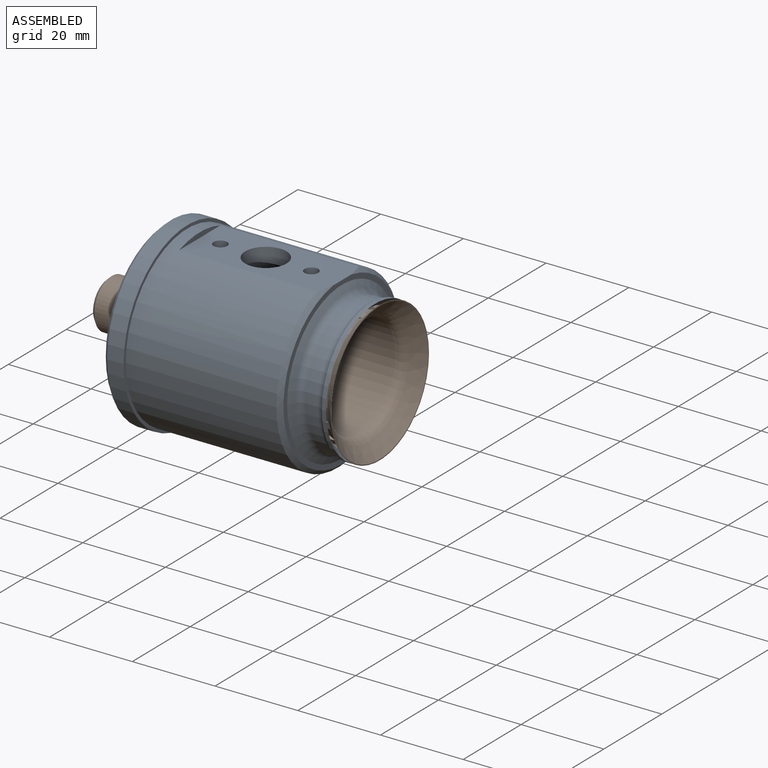
[diagram: assembled view]
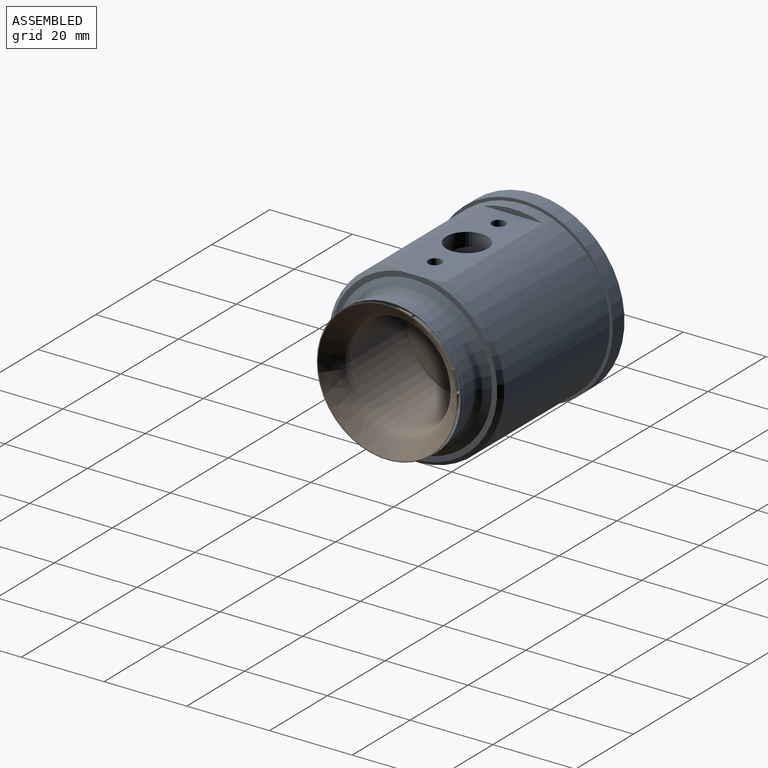
[diagram: assembled view, second angle]
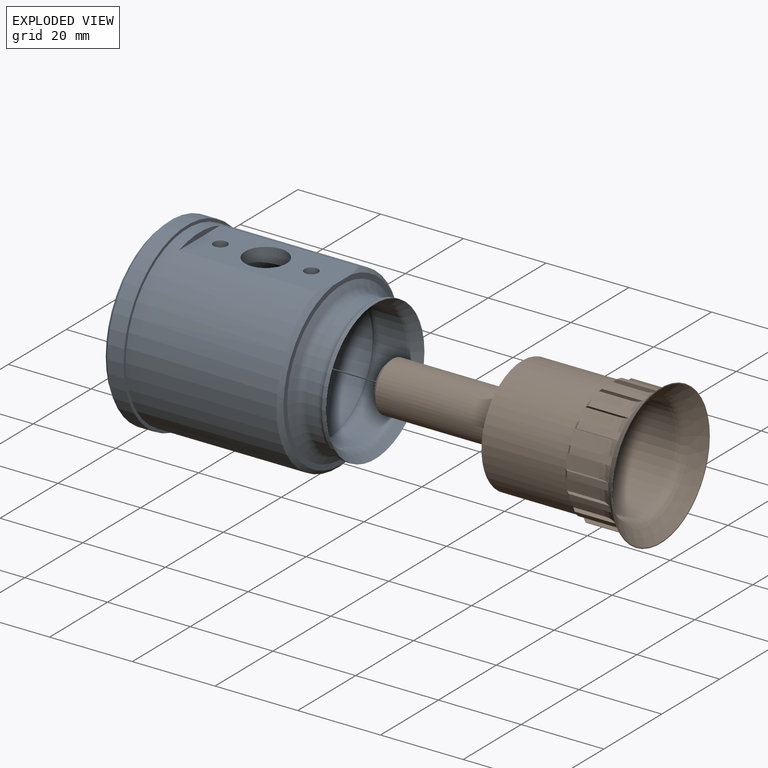
[diagram: exploded view]
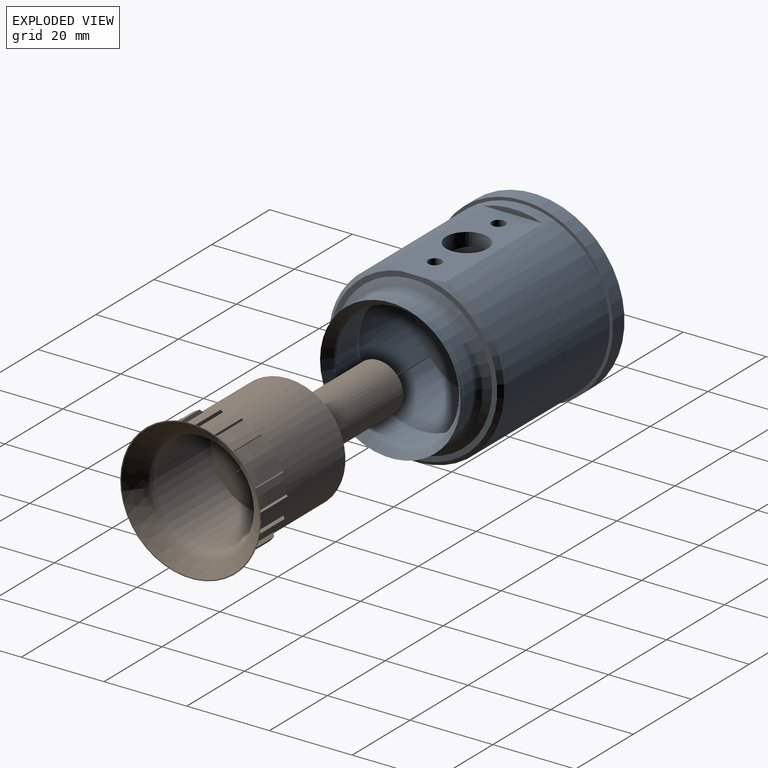
[diagram: exploded view, second angle]
ASSEMBLY  parts=2 mates=2
PART A: 34 faces, bbox 50.4x44x44 mm
  f0: cylinder r=5mm len=10mm, axis (0,0,1), area 106mm2, adj f15,f32
  f1: cylinder r=1.65mm len=3.3mm, axis (0,0,1), area 31.5mm2, adj f15,f32
  f2: cylinder r=21.25mm len=42.5mm, axis (-1,0,0), area 4374.7mm2, adj f4,f7,f15,f16
  f3: plane 40.5x40.25mm, normal (1,0,0), area 153.1mm2, adj f4,f14,f15
  f4: cone r=21.25mm half-angle=45deg, axis (-1,0,0), area 168.8mm2, adj f2,f3,f15
  f5: plane 42x42mm, normal (-1,0,0), area 1255.2mm2, adj f12,f13,f18,f21
  f6: cylinder r=22mm len=44mm, axis (-1,0,0), area 552.9mm2, adj f7,f12
  f7: plane 44x44mm, normal (1,0,0), area 101.9mm2, adj f2,f6
  f8: cylinder r=17mm len=34mm, axis (-1,0,0), area 106.8mm2, adj f9,f28
  f9: cone r=17mm half-angle=43deg, axis (1,0,0), area 219.2mm2, adj f8,f26
  f10: cylinder r=15mm len=30mm, axis (-1,0,0), area 625.7mm2, adj f26,f33
  f11: plane 34x34mm, normal (1,0,0), area 775.2mm2, adj f27,f32
  f12: cone r=21mm half-angle=45deg, axis (1,0,0), area 191mm2, adj f5,f6
  f13: cylinder r=6mm len=17.53mm, axis (-1,0,0), area 661mm2, adj f5,f27
  f14: cone r=17mm half-angle=63.4deg, axis (-1,0,0), area 201.7mm2, adj f3,f30
  f15: plane 34.44x14.37mm, normal (0,0,1), area 395.3mm2, adj f0,f1,f2,f3,f4,f16,f24
  f16: plane 14.36x1.25mm, normal (1,0,0), area 12mm2, adj f2,f15
  f17: cylinder r=1.65mm len=3.5mm, axis (-1,0,0), area 36.3mm2, adj f18,f19
  f18: cylinder r=1.65mm len=6mm, axis (-1,0,0), area 62.2mm2, adj f5,f17
  f19: cone r=0mm half-angle=60deg, axis (-1,0,0), area 9.9mm2, adj f17
  f20: cylinder r=1.65mm len=3.5mm, axis (-1,0,0), area 36.3mm2, adj f21,f22
  f21: cylinder r=1.65mm len=6mm, axis (-1,0,0), area 62.2mm2, adj f5,f20
  f22: cone r=0mm half-angle=60deg, axis (-1,0,0), area 9.9mm2, adj f20
  f23: cylinder r=1.65mm len=3.5mm, axis (0,0,1), area 36.3mm2, adj f24,f25
  f24: cylinder r=1.65mm len=8mm, axis (0,0,1), area 82.9mm2, adj f15,f23
  f25: cone r=0mm half-angle=60deg, axis (0,0,1), area 9.9mm2, adj f23
  f26: torus R=17mm, axis (1,0,0), area 143.2mm2, adj f9,f10
  f27: cone r=6mm half-angle=45deg, axis (1,0,0), area 27.8mm2, adj f11,f13
  f28: cone r=17mm half-angle=43deg, axis (1,0,0), area 22.6mm2, adj f8,f31
  f29: cylinder r=16.32mm len=32.64mm, axis (-1,0,0), area 297.7mm2, adj f30,f31
  f30: torus R=18.32mm, axis (-1,0,0), area 232.4mm2, adj f14,f29
  f31: torus R=18.32mm, axis (-1,0,0), area 155.6mm2, adj f28,f29
  f32: cylinder r=17mm len=34mm, axis (-1,0,0), area 2048.3mm2, adj f0,f1,f11,f33
  f33: torus R=18mm, axis (-1,0,0), area 364.3mm2, adj f10,f32
PART B: 122 faces, bbox 65.9x34.1x34.1 mm
  f0: cone r=15mm half-angle=45deg, axis (1,0,0), area 2.5mm2, adj f4,f35,f98,f100,f101,f102
  f1: cone r=15mm half-angle=45deg, axis (1,0,0), area 2.5mm2, adj f2,f35,f50,f51,f101,f103
  f2: cylinder r=15mm len=10mm, axis (-1,0,0), area 17.5mm2, adj f1,f49,f51,f103,f104,f107
  f3: cone r=15mm half-angle=45deg, axis (1,0,0), area 2.5mm2, adj f6,f35,f95,f97,f98,f99
  f4: cylinder r=15mm len=10mm, axis (-1,0,0), area 17.5mm2, adj f0,f49,f100,f102,f104,f105
  f5: cone r=15mm half-angle=45deg, axis (1,0,0), area 2.5mm2, adj f8,f35,f92,f94,f95,f96
  f6: cylinder r=15mm len=10mm, axis (-1,0,0), area 17.5mm2, adj f3,f49,f97,f99,f105,f106
  f7: cone r=15mm half-angle=45deg, axis (1,0,0), area 2.5mm2, adj f10,f35,f89,f91,f92,f93
  f8: cylinder r=15mm len=10mm, axis (-1,0,0), area 17.5mm2, adj f5,f49,f94,f96,f106,f109
  f9: cone r=15mm half-angle=45deg, axis (1,0,0), area 2.5mm2, adj f12,f35,f86,f88,f89,f90
  f10: cylinder r=15mm len=10mm, axis (-1,0,0), area 17.5mm2, adj f7,f49,f91,f93,f109,f110
  f11: cone r=15mm half-angle=45deg, axis (1,0,0), area 2.5mm2, adj f14,f35,f83,f85,f86,f87
  f12: cylinder r=15mm len=10mm, axis (-1,0,0), area 17.5mm2, adj f9,f49,f88,f90,f110,f111
  f13: cone r=15mm half-angle=45deg, axis (1,0,0), area 2.5mm2, adj f16,f35,f80,f82,f83,f84
  f14: cylinder r=15mm len=10mm, axis (-1,0,0), area 17.5mm2, adj f11,f49,f85,f87,f111,f112
  f15: cone r=15mm half-angle=45deg, axis (1,0,0), area 2.5mm2, adj f18,f35,f77,f79,f80,f81
  f16: cylinder r=15mm len=10mm, axis (-1,0,0), area 17.5mm2, adj f13,f49,f82,f84,f112,f113
  f17: cone r=15mm half-angle=45deg, axis (1,0,0), area 2.5mm2, adj f20,f35,f74,f76,f77,f78
  f18: cylinder r=15mm len=10mm, axis (-1,0,0), area 17.5mm2, adj f15,f49,f79,f81,f113,f114
  f19: cone r=15mm half-angle=45deg, axis (1,0,0), area 2.5mm2, adj f22,f35,f71,f73,f74,f75
  f20: cylinder r=15mm len=10mm, axis (-1,0,0), area 17.5mm2, adj f17,f49,f76,f78,f114,f115
  f21: cone r=15mm half-angle=45deg, axis (1,0,0), area 2.5mm2, adj f24,f35,f68,f70,f71,f72
  f22: cylinder r=15mm len=10mm, axis (-1,0,0), area 17.5mm2, adj f19,f49,f73,f75,f115,f116
  f23: cone r=15mm half-angle=45deg, axis (1,0,0), area 2.5mm2, adj f26,f35,f65,f67,f68,f69
  f24: cylinder r=15mm len=10mm, axis (-1,0,0), area 17.5mm2, adj f21,f49,f70,f72,f116,f117
  f25: cone r=15mm half-angle=45deg, axis (1,0,0), area 2.5mm2, adj f28,f35,f62,f64,f65,f66
  f26: cylinder r=15mm len=10mm, axis (-1,0,0), area 17.5mm2, adj f23,f49,f67,f69,f117,f118
  f27: cone r=15mm half-angle=45deg, axis (1,0,0), area 2.5mm2, adj f30,f35,f59,f61,f62,f63
  f28: cylinder r=15mm len=10mm, axis (-1,0,0), area 17.5mm2, adj f25,f49,f64,f66,f118,f119
  f29: cone r=15mm half-angle=45deg, axis (1,0,0), area 2.5mm2, adj f32,f35,f56,f58,f59,f60
  f30: cylinder r=15mm len=10mm, axis (-1,0,0), area 17.5mm2, adj f27,f49,f61,f63,f119,f120
  f31: cone r=15mm half-angle=45deg, axis (1,0,0), area 2.5mm2, adj f34,f35,f53,f55,f56,f57
  f32: cylinder r=15mm len=10mm, axis (-1,0,0), area 17.5mm2, adj f29,f49,f58,f60,f120,f121
  f33: cone r=15mm half-angle=45deg, axis (1,0,0), area 2.5mm2, adj f35,f43,f50,f52,f53,f54
  f34: cylinder r=15mm len=10mm, axis (-1,0,0), area 17.5mm2, adj f31,f49,f55,f57,f108,f121
  f35: cylinder r=14mm len=28mm, axis (-1,0,0), area 1790.5mm2, adj f0,f1,f3,f5,f7,f9,f11,f13
  f36: plane 28x28mm, normal (-1,0,0), area 511.9mm2, adj f35,f38
  f37: plane 12x12mm, normal (1,0,0), area 9.2mm2, adj f38,f42
  f38: cylinder r=5.75mm len=11.5mm, axis (1,0,0), area 72.3mm2, adj f36,f37
  f39: plane 10x10mm, normal (-1,0,0), area 78.5mm2, adj f40
  f40: cone r=5mm half-angle=45deg, axis (1,0,0), area 48.9mm2, adj f39,f41
  f41: cylinder r=6mm len=12mm, axis (-1,0,0), area 414.7mm2, adj f40,f42
  f42: cylinder r=6mm len=18.3mm, axis (-1,0,0), area 689.9mm2, adj f37,f41
  f43: cylinder r=15mm len=10mm, axis (-1,0,0), area 17.5mm2, adj f33,f49,f52,f54,f107,f108
  f44: plane 25x25mm, normal (1,0,0), area 490.9mm2, adj f45
  f45: cylinder r=12.5mm len=25mm, axis (-1,0,0), area 1557.1mm2, adj f44,f46
  f46: torus R=15.5mm, axis (1,0,0), area 211.6mm2, adj f45,f47
  f47: cone r=17mm half-angle=50deg, axis (1,0,0), area 396.8mm2, adj f46,f48
  f48: plane 34x34mm, normal (1,0,0), area 25.3mm2, adj f47,f49
  f49: cone r=14mm half-angle=43deg, axis (1,0,0), area 294.8mm2, adj f2,f4,f6,f8,f10,f12,f14,f16
  f50: plane 8.11x3.58mm, normal (0,0,1), area 27.9mm2, adj f1,f33,f51,f52,f107
  f51: plane 10.8x0.91mm, normal (0,1,0), area 8.5mm2, adj f1,f2,f50,f107
  f52: plane 10.8x0.92mm, normal (0,-1,0), area 8.5mm2, adj f33,f43,f50,f107
  f53: plane 8.11x3.37mm, normal (0,0.34,0.94), area 27.9mm2, adj f31,f33,f54,f55,f108
  f54: plane 10.8x0.86mm, normal (0,0.94,-0.34), area 8.5mm2, adj f33,f43,f53,f108
  f55: plane 10.8x0.86mm, normal (0,-0.94,0.34), area 8.5mm2, adj f31,f34,f53,f108
  f56: plane 8.11x2.76mm, normal (0,0.64,0.77), area 27.9mm2, adj f29,f31,f57,f58,f121
  f57: plane 10.8x0.7mm, normal (0,0.77,-0.64), area 8.5mm2, adj f31,f34,f56,f121
  f58: plane 10.8x0.71mm, normal (0,-0.77,0.64), area 8.5mm2, adj f29,f32,f56,f121
  f59: plane 8.11x3.11mm, normal (0,0.87,0.5), area 27.9mm2, adj f27,f29,f60,f61,f120
  f60: plane 10.8x0.79mm, normal (0,0.5,-0.87), area 8.5mm2, adj f29,f32,f59,f120
  f61: plane 10.8x0.79mm, normal (0,-0.5,0.87), area 8.5mm2, adj f27,f30,f59,f120
  f62: plane 8.11x3.53mm, normal (0,0.98,0.17), area 27.9mm2, adj f25,f27,f63,f64,f119
  f63: plane 10.8x0.9mm, normal (0,0.17,-0.98), area 8.5mm2, adj f27,f30,f62,f119
  f64: plane 10.8x0.9mm, normal (0,-0.17,0.98), area 8.5mm2, adj f25,f28,f62,f119
  f65: plane 8.11x3.53mm, normal (0,0.98,-0.17), area 27.9mm2, adj f23,f25,f66,f67,f118
  f66: plane 10.8x0.9mm, normal (0,-0.17,-0.98), area 8.5mm2, adj f25,f28,f65,f118
  f67: plane 10.8x0.9mm, normal (0,0.17,0.98), area 8.5mm2, adj f23,f26,f65,f118
  f68: plane 8.11x3.11mm, normal (0,0.87,-0.5), area 27.9mm2, adj f21,f23,f69,f70,f117
  f69: plane 10.8x0.79mm, normal (0,-0.5,-0.87), area 8.5mm2, adj f23,f26,f68,f117
  f70: plane 10.8x0.79mm, normal (0,0.5,0.87), area 8.5mm2, adj f21,f24,f68,f117
  f71: plane 8.11x2.76mm, normal (0,0.64,-0.77), area 27.9mm2, adj f19,f21,f72,f73,f116
  f72: plane 10.8x0.7mm, normal (0,-0.77,-0.64), area 8.5mm2, adj f21,f24,f71,f116
  f73: plane 10.8x0.71mm, normal (0,0.77,0.64), area 8.5mm2, adj f19,f22,f71,f116
  f74: plane 8.11x3.37mm, normal (0,0.34,-0.94), area 27.9mm2, adj f17,f19,f75,f76,f115
  f75: plane 10.8x0.86mm, normal (0,-0.94,-0.34), area 8.5mm2, adj f19,f22,f74,f115
  f76: plane 10.8x0.86mm, normal (0,0.94,0.34), area 8.5mm2, adj f17,f20,f74,f115
  f77: plane 8.11x3.58mm, normal (0,0,-1), area 27.9mm2, adj f15,f17,f78,f79,f114
  f78: plane 10.8x0.91mm, normal (0,-1,0), area 8.5mm2, adj f17,f20,f77,f114
  f79: plane 10.8x0.92mm, normal (0,1,0), area 8.5mm2, adj f15,f18,f77,f114
  f80: plane 8.11x3.37mm, normal (0,-0.34,-0.94), area 27.9mm2, adj f13,f15,f81,f82,f113
  f81: plane 10.8x0.86mm, normal (0,-0.94,0.34), area 8.5mm2, adj f15,f18,f80,f113
  f82: plane 10.8x0.86mm, normal (0,0.94,-0.34), area 8.5mm2, adj f13,f16,f80,f113
  f83: plane 8.11x2.76mm, normal (0,-0.64,-0.77), area 27.9mm2, adj f11,f13,f84,f85,f112
  f84: plane 10.8x0.7mm, normal (0,-0.77,0.64), area 8.5mm2, adj f13,f16,f83,f112
  f85: plane 10.8x0.71mm, normal (0,0.77,-0.64), area 8.5mm2, adj f11,f14,f83,f112
  f86: plane 8.11x3.11mm, normal (0,-0.87,-0.5), area 27.9mm2, adj f9,f11,f87,f88,f111
  f87: plane 10.8x0.79mm, normal (0,-0.5,0.87), area 8.5mm2, adj f11,f14,f86,f111
  f88: plane 10.8x0.79mm, normal (0,0.5,-0.87), area 8.5mm2, adj f9,f12,f86,f111
  f89: plane 8.11x3.53mm, normal (0,-0.98,-0.17), area 27.9mm2, adj f7,f9,f90,f91,f110
  f90: plane 10.8x0.9mm, normal (0,-0.17,0.98), area 8.5mm2, adj f9,f12,f89,f110
  f91: plane 10.8x0.9mm, normal (0,0.17,-0.98), area 8.5mm2, adj f7,f10,f89,f110
  f92: plane 8.11x3.53mm, normal (0,-0.98,0.17), area 27.9mm2, adj f5,f7,f93,f94,f109
  f93: plane 10.8x0.9mm, normal (0,0.17,0.98), area 8.5mm2, adj f7,f10,f92,f109
  f94: plane 10.8x0.9mm, normal (0,-0.17,-0.98), area 8.5mm2, adj f5,f8,f92,f109
  f95: plane 8.11x3.11mm, normal (0,-0.87,0.5), area 27.9mm2, adj f3,f5,f96,f97,f106
  f96: plane 10.8x0.79mm, normal (0,0.5,0.87), area 8.5mm2, adj f5,f8,f95,f106
  f97: plane 10.8x0.79mm, normal (0,-0.5,-0.87), area 8.5mm2, adj f3,f6,f95,f106
  f98: plane 8.11x2.76mm, normal (0,-0.64,0.77), area 27.9mm2, adj f0,f3,f99,f100,f105
  f99: plane 10.8x0.7mm, normal (0,0.77,0.64), area 8.5mm2, adj f3,f6,f98,f105
  f100: plane 10.8x0.71mm, normal (0,-0.77,-0.64), area 8.5mm2, adj f0,f4,f98,f105
  f101: plane 8.11x3.37mm, normal (0,-0.34,0.94), area 27.9mm2, adj f0,f1,f102,f103,f104
  f102: plane 10.8x0.86mm, normal (0,0.94,0.34), area 8.5mm2, adj f0,f4,f101,f104
  f103: plane 10.8x0.86mm, normal (0,-0.94,-0.34), area 8.5mm2, adj f1,f2,f101,f104
  f104: bspline ~3.71x3mm, area 11.1mm2, adj f2,f4,f101,f102,f103
  f105: bspline ~3.35x3.02mm, area 11.1mm2, adj f4,f6,f98,f99,f100
  f106: bspline ~3.59x3mm, area 11.1mm2, adj f6,f8,f95,f96,f97
  f107: bspline ~3.74x3mm, area 11.1mm2, adj f2,f43,f50,f51,f52
  f108: bspline ~3.71x3mm, area 11.1mm2, adj f34,f43,f53,f54,f55
  f109: bspline ~3.72x3mm, area 11.1mm2, adj f8,f10,f92,f93,f94
  f110: bspline ~3.72x3mm, area 11.1mm2, adj f10,f12,f89,f90,f91
  f111: bspline ~3.59x3mm, area 11.1mm2, adj f12,f14,f86,f87,f88
  f112: bspline ~3.35x3.02mm, area 11.1mm2, adj f14,f16,f83,f84,f85
  f113: bspline ~3.71x3mm, area 11.1mm2, adj f16,f18,f80,f81,f82
  f114: bspline ~3.74x3mm, area 11.1mm2, adj f18,f20,f77,f78,f79
  f115: bspline ~3.71x3mm, area 11.1mm2, adj f20,f22,f74,f75,f76
  f116: bspline ~3.35x3.02mm, area 11.1mm2, adj f22,f24,f71,f72,f73
  f117: bspline ~3.59x3mm, area 11.1mm2, adj f24,f26,f68,f69,f70
  f118: bspline ~3.72x3mm, area 11.1mm2, adj f26,f28,f65,f66,f67
  f119: bspline ~3.72x3mm, area 11.1mm2, adj f28,f30,f62,f63,f64
  f120: bspline ~3.59x3mm, area 11.1mm2, adj f30,f32,f59,f60,f61
  f121: bspline ~3.35x3.02mm, area 11.1mm2, adj f32,f34,f56,f57,f58
PLACE A t=(2.36,-5.83,9.98)mm fixed
PLACE B rot(axis=(1,0,0),98.1deg) t=(42.91,-5.83,9.98)mm
MATE planar B.f0 <-> A.f2  axis (-1,0,0) through (20.39,-5.83,9.98)mm
MATE cylindrical B.f0 <-> A.f2  axis (-1,0,0) through (9.24,-5.83,9.98)mm
